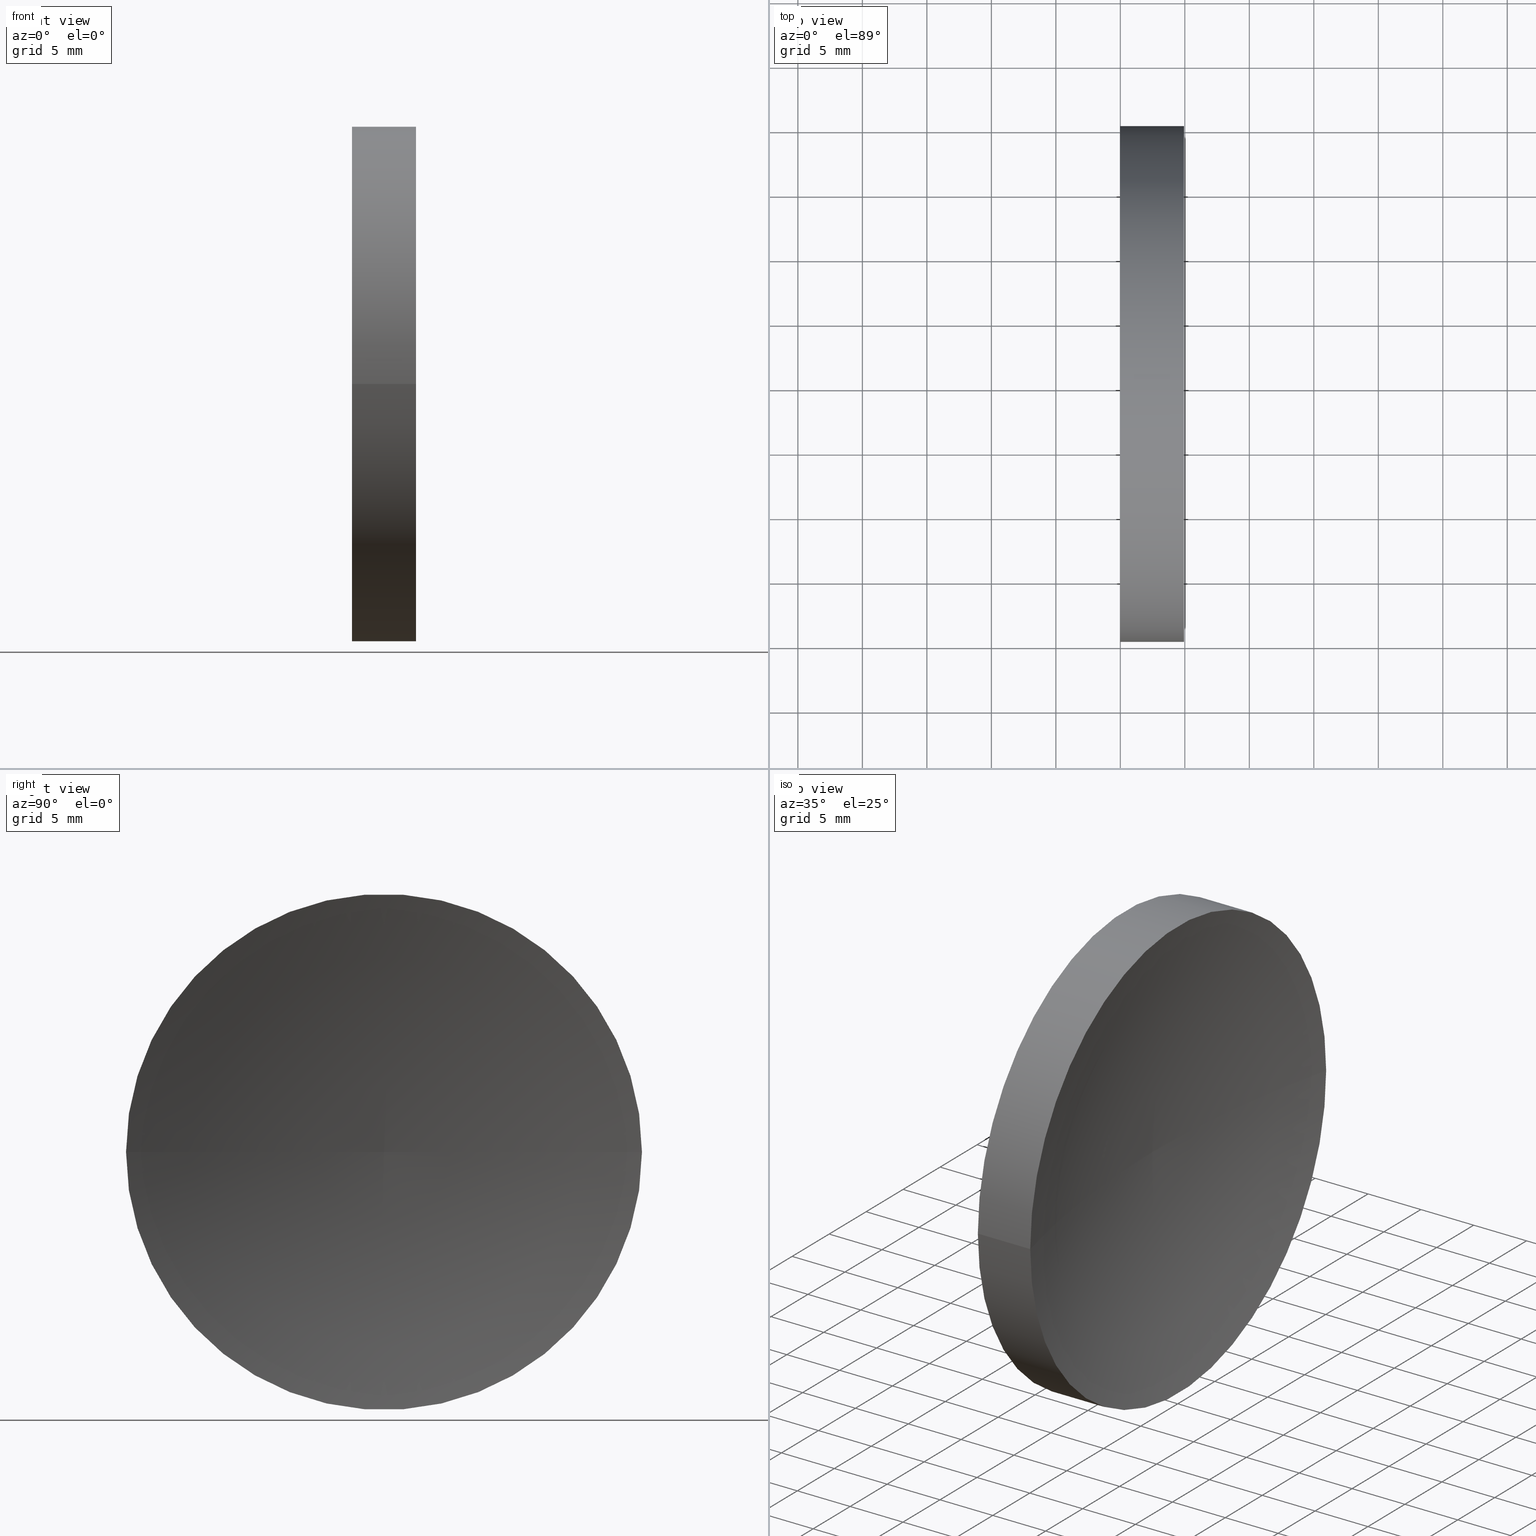
[diagram: canonical four-view strip — front | top / right | iso, engineering-drawing reading convention]
A machine part, canonical four-view strip (front | top / right | iso — engineering-drawing reading convention). The complete STEP part file that produces these views, byte-faithful:
ISO-10303-21;
HEADER;
FILE_DESCRIPTION (( 'STEP AP214' ),
    '1' );
FILE_NAME ('120169.STEP',
    '2019-06-21T02:57:01',
    ( '' ),
    ( '' ),
    'SwSTEP 2.0',
    'SolidWorks 2016',
    '' );
FILE_SCHEMA (( 'AUTOMOTIVE_DESIGN' ));
ENDSEC;

DATA;
#1 = PRESENTATION_LAYER_ASSIGNMENT (  '', '', ( #151 ) ) ;
#2 = EDGE_CURVE ( 'NONE', #124, #101, #45, .T. ) ;
#3 = MANIFOLD_SOLID_BREP ( '��ת1', #43 ) ;
#4 = CARTESIAN_POINT ( 'NONE',  ( 200.0954469770586900, 65.15061194377257400, -8.376440594174026000E-019 ) ) ;
#5 = CARTESIAN_POINT ( 'NONE',  ( 119.9344168071347200, 85.15745182658623900, 2.449293598294714000E-015 ) ) ;
#6 = SURFACE_STYLE_USAGE ( .BOTH. , #120 ) ;
#7 = DIRECTION ( 'NONE',  ( -1.000000000000000000, 0.0000000000000000000, 0.0000000000000000000 ) ) ;
#8 = ORIENTED_EDGE ( 'NONE', *, *, #2, .F. ) ;
#9 = CARTESIAN_POINT ( 'NONE',  ( 119.9344168071347100, 65.15745182658619700, 0.0000000000000000000 ) ) ;
#10 = ORIENTED_EDGE ( 'NONE', *, *, #135, .T. ) ;
#11 = AXIS2_PLACEMENT_3D ( 'NONE', #159, #156, #21 ) ;
#12 = LINE ( 'NONE', #28, #75 ) ;
#13 = VERTEX_POINT ( 'NONE', #5 ) ;
#14 = PRESENTATION_STYLE_ASSIGNMENT (( #17 ) ) ;
#15 = ORIENTED_EDGE ( 'NONE', *, *, #19, .T. ) ;
#16 = CARTESIAN_POINT ( 'NONE',  ( 200.0954469770586900, 65.15745182658614000, 0.0000000000000000000 ) ) ;
#17 = SURFACE_STYLE_USAGE ( .BOTH. , #90 ) ;
#18 = DIRECTION ( 'NONE',  ( -1.000000000000000000, 6.488933942079480100E-016, -0.0000000000000000000 ) ) ;
#19 = EDGE_CURVE ( 'NONE', #114, #124, #31, .T. ) ;
#20 = COLOUR_RGB ( '',1.000000000000000000, 1.000000000000000000, 1.000000000000000000 ) ;
#21 = DIRECTION ( 'NONE',  ( -6.488933942079480100E-016, -1.000000000000000000, 0.0000000000000000000 ) ) ;
#22 =( GEOMETRIC_REPRESENTATION_CONTEXT ( 3 ) GLOBAL_UNCERTAINTY_ASSIGNED_CONTEXT ( ( #125 ) ) GLOBAL_UNIT_ASSIGNED_CONTEXT ( ( #130, #148, #150 ) ) REPRESENTATION_CONTEXT ( 'NONE', 'WORKASPACE' ) );
#23 = FILL_AREA_STYLE_COLOUR ( '', #97 ) ;
#24 =( NAMED_UNIT ( * ) PLANE_ANGLE_UNIT ( ) SI_UNIT ( $, .RADIAN. ) );
#25 = VERTEX_POINT ( 'NONE', #80 ) ;
#26 = ORIENTED_EDGE ( 'NONE', *, *, #113, .F. ) ;
#27 = APPLICATION_PROTOCOL_DEFINITION ( 'draft international standard', 'automotive_design', 1998, #161 ) ;
#28 = CARTESIAN_POINT ( 'NONE',  ( 110.0147892488423800, 85.15745182658621100, 2.449293598294708100E-015 ) ) ;
#29 = FACE_OUTER_BOUND ( 'NONE', #105, .T. ) ;
#30 = FACE_OUTER_BOUND ( 'NONE', #91, .T. ) ;
#31 = LINE ( 'NONE', #108, #111 ) ;
#32 = AXIS2_PLACEMENT_3D ( 'NONE', #59, #117, #82 ) ;
#33 = DIRECTION ( 'NONE',  ( -6.938893903907219500E-016, -1.000000000000000000, 0.0000000000000000000 ) ) ;
#34 = FILL_AREA_STYLE ('',( #23 ) ) ;
#35 = PRODUCT_DEFINITION_CONTEXT ( 'detailed design', #53, 'design' ) ;
#36 = DIRECTION ( 'NONE',  ( -1.000000000000000000, 6.488933942079480100E-016, -0.0000000000000000000 ) ) ;
#37 = DIRECTION ( 'NONE',  ( 1.000000000000000000, 0.0000000000000000000, 0.0000000000000000000 ) ) ;
#38 = CARTESIAN_POINT ( 'NONE',  ( 200.0954469770586900, 65.16429170939970600, 0.0000000000000000000 ) ) ;
#39 = FILL_AREA_STYLE ('',( #98 ) ) ;
#40 = MECHANICAL_DESIGN_GEOMETRIC_PRESENTATION_REPRESENTATION (  '', ( #151 ), #83 ) ;
#41 = AXIS2_PLACEMENT_3D ( 'NONE', #61, #155, #116 ) ;
#42 = ADVANCED_FACE ( 'NONE', ( #29 ), #52, .F. ) ;
#43 = CLOSED_SHELL ( 'NONE', ( #166, #42, #65, #126, #100 ) ) ;
#44 = EDGE_CURVE ( 'NONE', #13, #25, #76, .T. ) ;
#45 = CIRCLE ( 'NONE', #32, 20.00000000000000400 ) ;
#46 =( NAMED_UNIT ( * ) SI_UNIT ( $, .STERADIAN. ) SOLID_ANGLE_UNIT ( ) );
#47 = DIRECTION ( 'NONE',  ( -1.000000000000000000, 6.488933942079480100E-016, -0.0000000000000000000 ) ) ;
#48 = AXIS2_PLACEMENT_3D ( 'NONE', #38, #112, #7 ) ;
#49 =( LENGTH_UNIT ( ) NAMED_UNIT ( * ) SI_UNIT ( .MILLI., .METRE. ) );
#50 = DIRECTION ( 'NONE',  ( 0.0000000000000000000, 0.0000000000000000000, 1.000000000000000000 ) ) ;
#51 = CARTESIAN_POINT ( 'NONE',  ( 110.0147892488423600, 65.15745182658619700, 0.0000000000000000000 ) ) ;
#52 = TOROIDAL_SURFACE ( 'NONE', #67, -0.006839882813563902300, 82.62000000000003300 ) ;
#53 = APPLICATION_CONTEXT ( 'automotive_design' ) ;
#54 = ADVANCED_BREP_SHAPE_REPRESENTATION ( '120169', ( #3, #99 ), #22 ) ;
#55 = PRESENTATION_STYLE_ASSIGNMENT (( #6 ) ) ;
#56 = EDGE_LOOP ( 'NONE', ( #165, #149 ) ) ;
#57 = AXIS2_PLACEMENT_3D ( 'NONE', #9, #109, #162 ) ;
#58 = ORIENTED_EDGE ( 'NONE', *, *, #44, .F. ) ;
#59 = CARTESIAN_POINT ( 'NONE',  ( 114.9754472601862100, 65.15745182658619700, 0.0000000000000000000 ) ) ;
#60 = DIRECTION ( 'NONE',  ( -7.946652182046252500E-032, -1.224646799147353200E-016, 1.000000000000000000 ) ) ;
#61 = CARTESIAN_POINT ( 'NONE',  ( 114.9754472601862100, 65.15745182658619700, 0.0000000000000000000 ) ) ;
#62 = DIRECTION ( 'NONE',  ( -6.938893903907224400E-016, -1.000000000000000000, 0.0000000000000000000 ) ) ;
#63 = CYLINDRICAL_SURFACE ( 'NONE', #74, 20.00000000000001100 ) ;
#64 =( LENGTH_UNIT ( ) NAMED_UNIT ( * ) SI_UNIT ( .MILLI., .METRE. ) );
#65 = ADVANCED_FACE ( 'NONE', ( #30 ), #139, .F. ) ;
#66 = ORIENTED_EDGE ( 'NONE', *, *, #164, .T. ) ;
#67 = AXIS2_PLACEMENT_3D ( 'NONE', #16, #71, #69 ) ;
#68 = CARTESIAN_POINT ( 'NONE',  ( 114.9754472601862300, 65.15745182658619700, 0.0000000000000000000 ) ) ;
#69 = DIRECTION ( 'NONE',  ( -6.488933942079480100E-016, -1.000000000000000000, 0.0000000000000000000 ) ) ;
#70 = EDGE_LOOP ( 'NONE', ( #123, #66, #15, #26 ) ) ;
#71 = DIRECTION ( 'NONE',  ( -1.000000000000000000, 6.488933942079480100E-016, -0.0000000000000000000 ) ) ;
#72 = DIRECTION ( 'NONE',  ( 1.000000000000000000, -6.488933942079480100E-016, 0.0000000000000000000 ) ) ;
#73 = FACE_OUTER_BOUND ( 'NONE', #70, .T. ) ;
#74 = AXIS2_PLACEMENT_3D ( 'NONE', #145, #47, #107 ) ;
#75 = VECTOR ( 'NONE', #122, 1000.000000000000000 ) ;
#76 = CIRCLE ( 'NONE', #158, 82.62000000000003300 ) ;
#77 = ORIENTED_EDGE ( 'NONE', *, *, #19, .F. ) ;
#78 = STYLED_ITEM ( 'NONE', ( #55 ), #54 ) ;
#79 = CIRCLE ( 'NONE', #57, 20.00000000000002500 ) ;
#80 = CARTESIAN_POINT ( 'NONE',  ( 117.4754472601862100, 65.15745182658619700, 0.0000000000000000000 ) ) ;
#81 =( GEOMETRIC_REPRESENTATION_CONTEXT ( 3 ) GLOBAL_UNCERTAINTY_ASSIGNED_CONTEXT ( ( #110 ) ) GLOBAL_UNIT_ASSIGNED_CONTEXT ( ( #64, #24, #132 ) ) REPRESENTATION_CONTEXT ( 'NONE', 'WORKASPACE' ) );
#82 = DIRECTION ( 'NONE',  ( -6.938893903907227400E-016, -1.000000000000000000, 0.0000000000000000000 ) ) ;
#83 =( GEOMETRIC_REPRESENTATION_CONTEXT ( 3 ) GLOBAL_UNCERTAINTY_ASSIGNED_CONTEXT ( ( #138 ) ) GLOBAL_UNIT_ASSIGNED_CONTEXT ( ( #49, #115, #46 ) ) REPRESENTATION_CONTEXT ( 'NONE', 'WORKASPACE' ) );
#84 = ORIENTED_EDGE ( 'NONE', *, *, #135, .F. ) ;
#85 = AXIS2_PLACEMENT_3D ( 'NONE', #51, #36, #62 ) ;
#86 = CYLINDRICAL_SURFACE ( 'NONE', #85, 20.00000000000001100 ) ;
#87 = EDGE_LOOP ( 'NONE', ( #10, #140, #8, #77 ) ) ;
#88 = MECHANICAL_DESIGN_GEOMETRIC_PRESENTATION_REPRESENTATION (  '', ( #78 ), #81 ) ;
#89 = ORIENTED_EDGE ( 'NONE', *, *, #164, .F. ) ;
#90 = SURFACE_SIDE_STYLE ('',( #144 ) ) ;
#91 = EDGE_LOOP ( 'NONE', ( #58, #84, #163 ) ) ;
#92 = CARTESIAN_POINT ( 'NONE',  ( 119.9344168071347100, 65.15745182658619700, 0.0000000000000000000 ) ) ;
#93 = PLANE ( 'NONE',  #147 ) ;
#94 = PRESENTATION_LAYER_ASSIGNMENT (  '', '', ( #78 ) ) ;
#95 = CARTESIAN_POINT ( 'NONE',  ( 114.9754472601862300, 85.15745182658619700, 2.449293598294706500E-015 ) ) ;
#96 = SURFACE_STYLE_FILL_AREA ( #39 ) ;
#97 = COLOUR_RGB ( '',1.000000000000000000, 1.000000000000000000, 1.000000000000000000 ) ;
#98 = FILL_AREA_STYLE_COLOUR ( '', #20 ) ;
#99 = AXIS2_PLACEMENT_3D ( 'NONE', #134, #50, #37 ) ;
#100 = ADVANCED_FACE ( 'NONE', ( #128 ), #93, .F. ) ;
#101 = VERTEX_POINT ( 'NONE', #95 ) ;
#102 = PRODUCT_DEFINITION_FORMATION_WITH_SPECIFIED_SOURCE ( '�κ�', '', #146, .NOT_KNOWN. ) ;
#103 = DIRECTION ( 'NONE',  ( 0.0000000000000000000, -1.000000000000000000, -1.224646799147353000E-016 ) ) ;
#104 = CIRCLE ( 'NONE', #41, 20.00000000000000400 ) ;
#105 = EDGE_LOOP ( 'NONE', ( #89, #133, #152 ) ) ;
#106 = DIRECTION ( 'NONE',  ( -1.000000000000000000, 6.488933942079480100E-016, -0.0000000000000000000 ) ) ;
#107 = DIRECTION ( 'NONE',  ( -6.938893903907224400E-016, -1.000000000000000000, 0.0000000000000000000 ) ) ;
#108 = CARTESIAN_POINT ( 'NONE',  ( 110.0147892488423500, 45.15745182658618300, 0.0000000000000000000 ) ) ;
#109 = DIRECTION ( 'NONE',  ( -1.000000000000000000, 6.488933942079480100E-016, -0.0000000000000000000 ) ) ;
#110 = UNCERTAINTY_MEASURE_WITH_UNIT (LENGTH_MEASURE( 1.000000000000000100E-005 ), #64, 'distance_accuracy_value', 'NONE');
#111 = VECTOR ( 'NONE', #106, 1000.000000000000000 ) ;
#112 = DIRECTION ( 'NONE',  ( 0.0000000000000000000, -0.0000000000000000000, -1.000000000000000000 ) ) ;
#113 = EDGE_CURVE ( 'NONE', #101, #124, #104, .T. ) ;
#114 = VERTEX_POINT ( 'NONE', #157 ) ;
#115 =( NAMED_UNIT ( * ) PLANE_ANGLE_UNIT ( ) SI_UNIT ( $, .RADIAN. ) );
#116 = DIRECTION ( 'NONE',  ( -6.938893903907227400E-016, -1.000000000000000000, 0.0000000000000000000 ) ) ;
#117 = DIRECTION ( 'NONE',  ( -1.000000000000000000, 6.488933942079480100E-016, -0.0000000000000000000 ) ) ;
#118 = PRODUCT_DEFINITION ( 'δ֪', '', #102, #35 ) ;
#119 = CARTESIAN_POINT ( 'NONE',  ( 114.9754472601862000, 45.15745182658619000, 0.0000000000000000000 ) ) ;
#120 = SURFACE_SIDE_STYLE ('',( #96 ) ) ;
#121 = CIRCLE ( 'NONE', #153, 20.00000000000002500 ) ;
#122 = DIRECTION ( 'NONE',  ( -1.000000000000000000, 6.488933942079480100E-016, -0.0000000000000000000 ) ) ;
#123 = ORIENTED_EDGE ( 'NONE', *, *, #143, .F. ) ;
#124 = VERTEX_POINT ( 'NONE', #119 ) ;
#125 = UNCERTAINTY_MEASURE_WITH_UNIT (LENGTH_MEASURE( 1.000000000000000100E-005 ), #130, 'distance_accuracy_value', 'NONE');
#126 = ADVANCED_FACE ( 'NONE', ( #73 ), #63, .T. ) ;
#127 = PRODUCT_RELATED_PRODUCT_CATEGORY ( 'part', '', ( #146 ) ) ;
#128 = FACE_OUTER_BOUND ( 'NONE', #56, .T. ) ;
#129 = PRODUCT_CONTEXT ( 'NONE', #161, 'mechanical' ) ;
#130 =( LENGTH_UNIT ( ) NAMED_UNIT ( * ) SI_UNIT ( .MILLI., .METRE. ) );
#131 = APPLICATION_PROTOCOL_DEFINITION ( 'draft international standard', 'automotive_design', 1998, #53 ) ;
#132 =( NAMED_UNIT ( * ) SI_UNIT ( $, .STERADIAN. ) SOLID_ANGLE_UNIT ( ) );
#133 = ORIENTED_EDGE ( 'NONE', *, *, #44, .T. ) ;
#134 = CARTESIAN_POINT ( 'NONE',  ( 0.0000000000000000000, 0.0000000000000000000, 0.0000000000000000000 ) ) ;
#135 = EDGE_CURVE ( 'NONE', #114, #13, #121, .T. ) ;
#136 = SHAPE_DEFINITION_REPRESENTATION ( #137, #54 ) ;
#137 = PRODUCT_DEFINITION_SHAPE ( 'NONE', 'NONE',  #118 ) ;
#138 = UNCERTAINTY_MEASURE_WITH_UNIT (LENGTH_MEASURE( 1.000000000000000100E-005 ), #49, 'distance_accuracy_value', 'NONE');
#139 = TOROIDAL_SURFACE ( 'NONE', #11, -0.006839882813563902300, 82.62000000000003300 ) ;
#140 = ORIENTED_EDGE ( 'NONE', *, *, #143, .T. ) ;
#141 = EDGE_CURVE ( 'NONE', #114, #25, #154, .T. ) ;
#142 = FACE_OUTER_BOUND ( 'NONE', #87, .T. ) ;
#143 = EDGE_CURVE ( 'NONE', #13, #101, #12, .T. ) ;
#144 = SURFACE_STYLE_FILL_AREA ( #34 ) ;
#145 = CARTESIAN_POINT ( 'NONE',  ( 110.0147892488423600, 65.15745182658619700, 0.0000000000000000000 ) ) ;
#146 = PRODUCT ( '120169', '120169', '', ( #129 ) ) ;
#147 = AXIS2_PLACEMENT_3D ( 'NONE', #68, #72, #160 ) ;
#148 =( NAMED_UNIT ( * ) PLANE_ANGLE_UNIT ( ) SI_UNIT ( $, .RADIAN. ) );
#149 = ORIENTED_EDGE ( 'NONE', *, *, #113, .T. ) ;
#150 =( NAMED_UNIT ( * ) SI_UNIT ( $, .STERADIAN. ) SOLID_ANGLE_UNIT ( ) );
#151 = STYLED_ITEM ( 'NONE', ( #14 ), #3 ) ;
#152 = ORIENTED_EDGE ( 'NONE', *, *, #141, .F. ) ;
#153 = AXIS2_PLACEMENT_3D ( 'NONE', #92, #18, #33 ) ;
#154 = CIRCLE ( 'NONE', #48, 82.62000000000003300 ) ;
#155 = DIRECTION ( 'NONE',  ( -1.000000000000000000, 6.488933942079480100E-016, -0.0000000000000000000 ) ) ;
#156 = DIRECTION ( 'NONE',  ( -1.000000000000000000, 6.488933942079480100E-016, -0.0000000000000000000 ) ) ;
#157 = CARTESIAN_POINT ( 'NONE',  ( 119.9344168071347100, 45.15745182658613300, 0.0000000000000000000 ) ) ;
#158 = AXIS2_PLACEMENT_3D ( 'NONE', #4, #60, #103 ) ;
#159 = CARTESIAN_POINT ( 'NONE',  ( 200.0954469770586900, 65.15745182658614000, 0.0000000000000000000 ) ) ;
#160 = DIRECTION ( 'NONE',  ( 6.488933942079480100E-016, 1.000000000000000000, 0.0000000000000000000 ) ) ;
#161 = APPLICATION_CONTEXT ( 'automotive_design' ) ;
#162 = DIRECTION ( 'NONE',  ( -6.938893903907219500E-016, -1.000000000000000000, 0.0000000000000000000 ) ) ;
#163 = ORIENTED_EDGE ( 'NONE', *, *, #141, .T. ) ;
#164 = EDGE_CURVE ( 'NONE', #13, #114, #79, .T. ) ;
#165 = ORIENTED_EDGE ( 'NONE', *, *, #2, .T. ) ;
#166 = ADVANCED_FACE ( 'NONE', ( #142 ), #86, .T. ) ;
ENDSEC;
END-ISO-10303-21;
